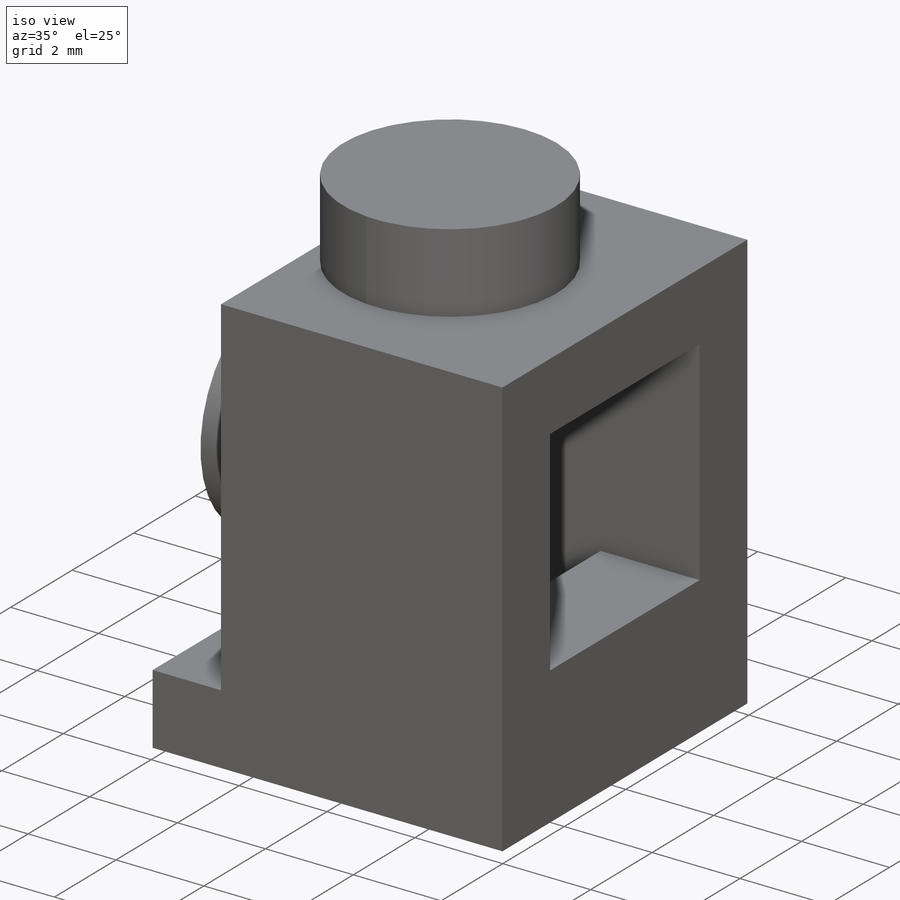
[diagram: iso view]
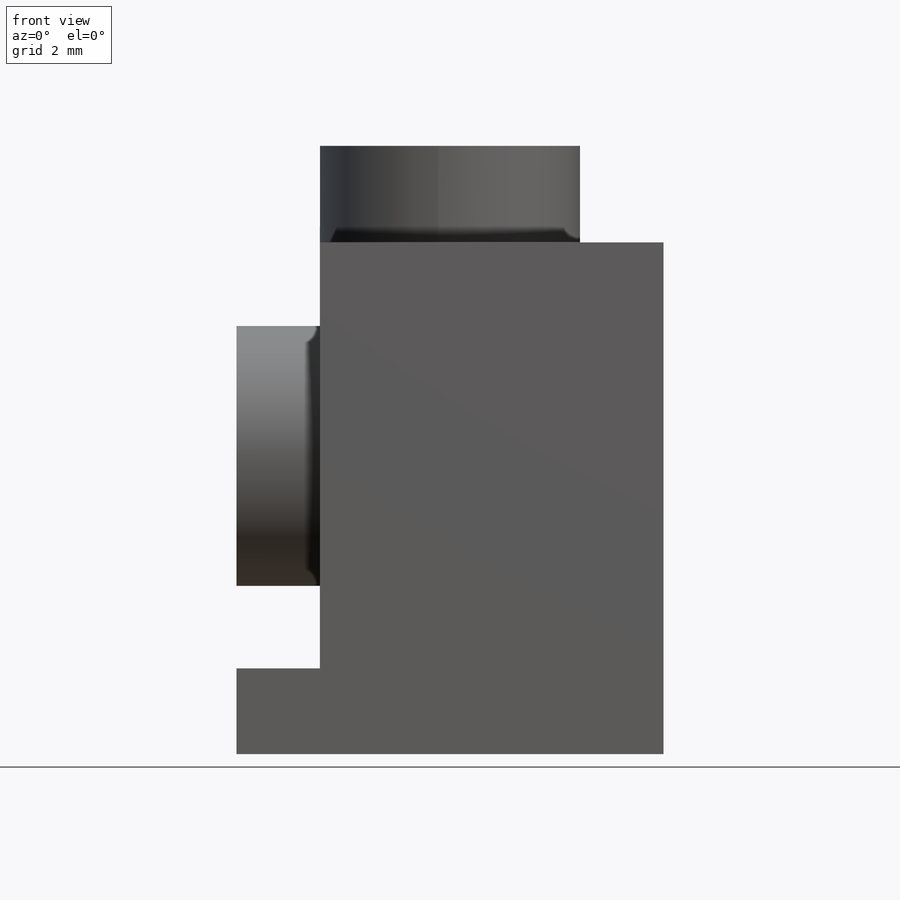
[diagram: front view]
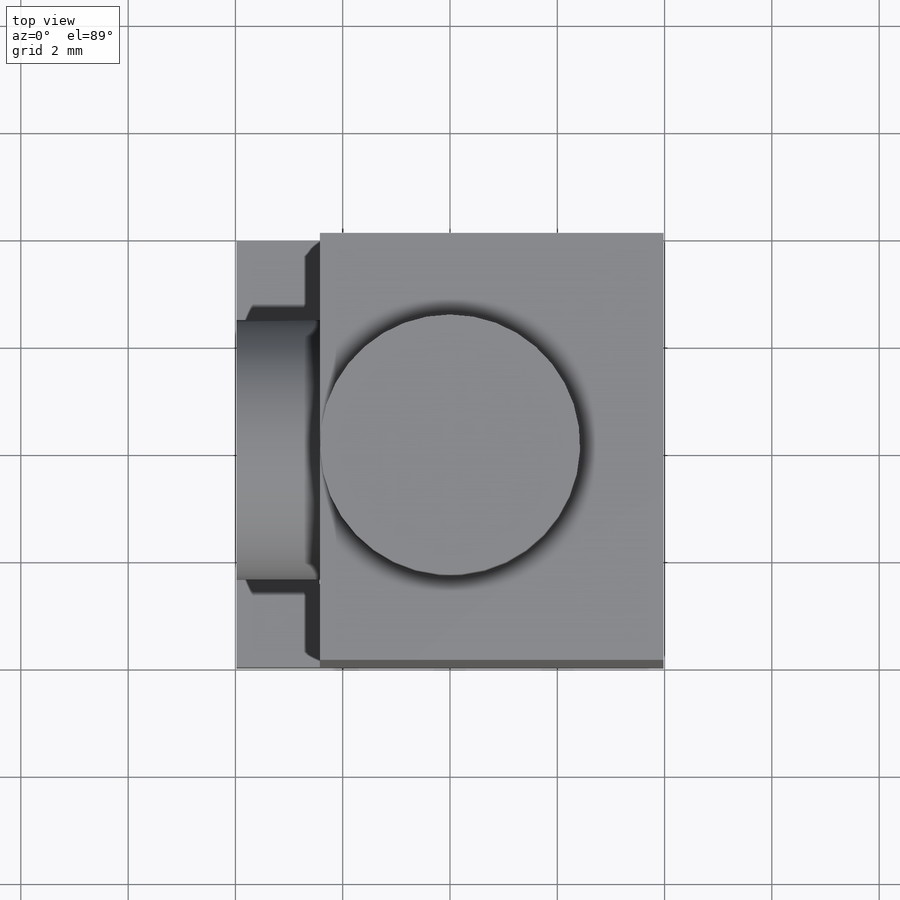
[diagram: top view]
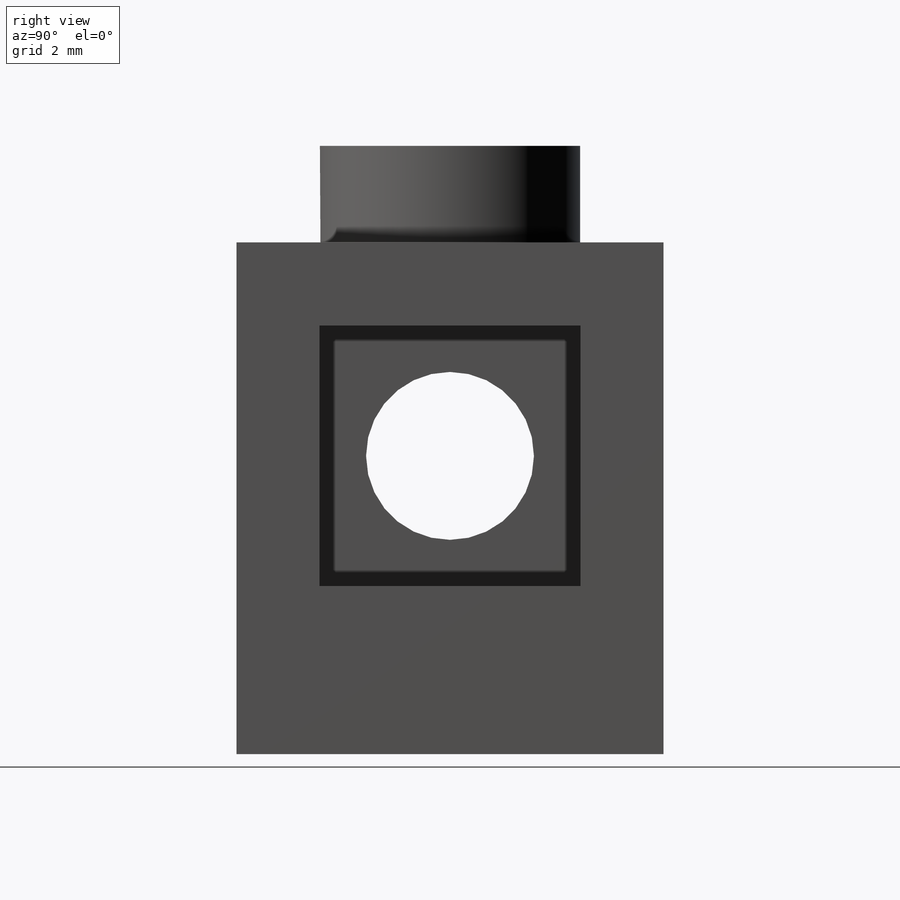
[diagram: right view]
SOLIDWORKS PART (.sldprt)
format: sldprt  version: not decoded by parser v0  size: 210,432 bytes
history: native  units: mm
features: sketch x8, extrude x4, cut_extrude x4, material x1, shell x1 (+14 scaffold rows collapsed)
feature tree (32):
  scaffold x14  (default folders/planes/origin — collapsed)
  material  "Material <not specified>"
  sketch  "Sketch1"  dims[D1=7.96mm]
  extrude  "Extrude1"  Depth=9.54mm
  sketch  "Sketch2"  dims[D1=4.85mm]
  extrude  "Extrude2"  Depth=1.8mm
  shell  "Shell1"  Thickness=1.55mm
  sketch  "Sketch3"
  cut_extrude  "Extrude3"  Depth=0.14mm
  sketch  "Sketch5"
  cut_extrude  "Extrude5"  Depth=7.94mm
  sketch  "Sketch7"  dims[D1=2.25mm]
  extrude  "Extrude6"  [1 undecoded]
  sketch  "Sketch4"  dims[D1=1.55mm D2=1.55mm D3=1.55mm D4=3.13mm]
  cut_extrude  "Extrude7"  [1 undecoded]
  sketch  "Sketch8"  dims[D1=4.85mm]
  extrude  "Extrude8"  [1 undecoded]
  sketch  "Sketch9"  dims[D1=0.86mm]
  cut_extrude  "Extrude9"  [1 undecoded]
decode coverage: 11 of 17 modeling features carry decoded parameters
note: 4 parameter values undecoded
summary: no parameter record found for 4 features
note: suppression state not decoded; provenance and decode notes live in map.json
